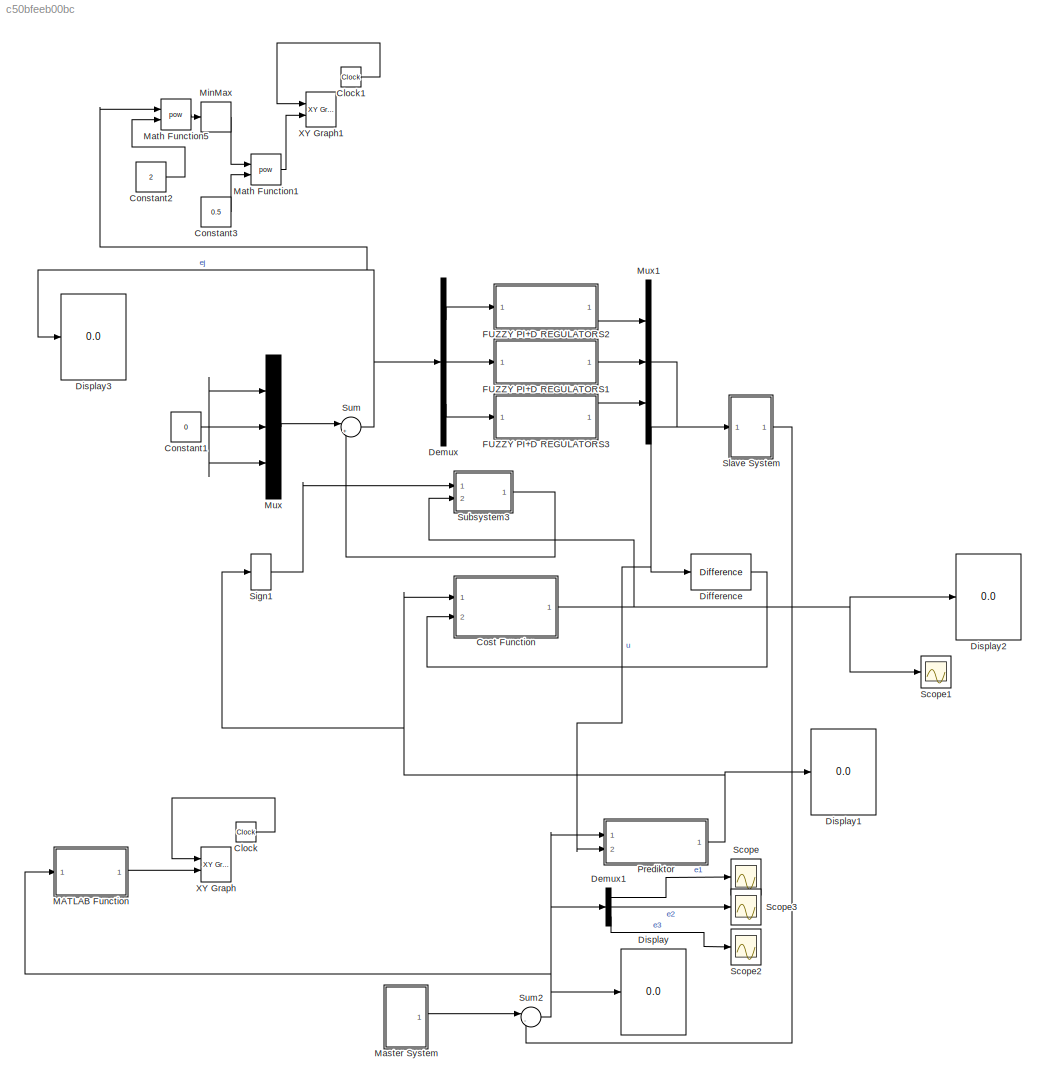
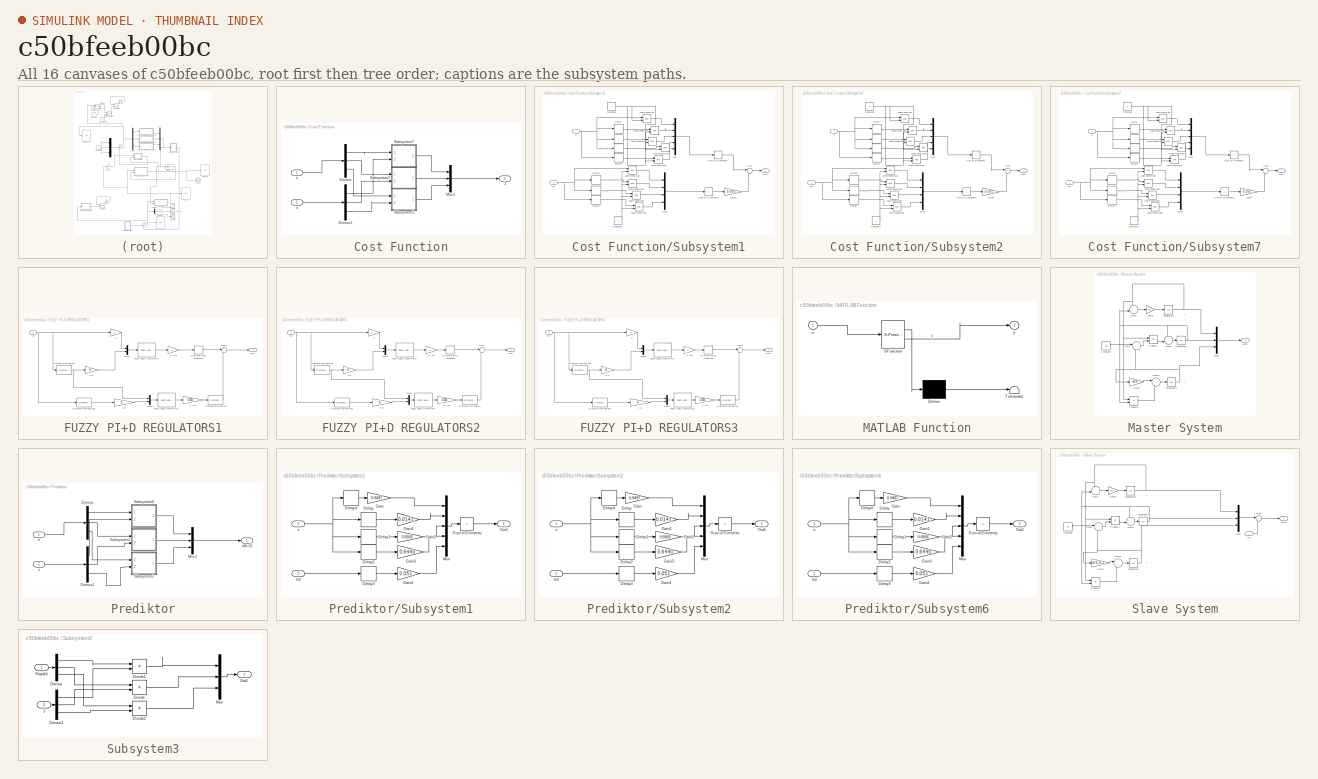
[diagram: thumbnail index - all 16 canvases of the model, root first then tree order]
MODEL slx_c50bfeeb00bc
KIND model
CONFIG AbsTol = auto
CONFIG EnableMultiTasking = off
CONFIG FixedStep = auto
CONFIG MaxStep = auto
CONFIG MinStep = auto
CONFIG RelTol = 1e-3
CONFIG SampleTimeConstraint = Unconstrained
CONFIG SolverName = VariableStepAuto
CONFIG StartTime = 0.0
CONFIG StopTime = 100
BLOCK [Clock] Clock
BLOCK [Clock] Clock1
BLOCK [Constant] Constant1
  Value = 0
BLOCK [Constant] Constant2
  Value = 2
BLOCK [Constant] Constant3
  Value = 0.5
BLOCK [SubSystem] Cost Function
  Ports = [2, 1]
  RequestExecContextInheritance = off
BLOCK [Demux] Cost Function/Demux
  Outputs = 3
  Ports = [1, 3]
BLOCK [Demux] Cost Function/Demux1
  Outputs = 3
  Ports = [1, 3]
BLOCK [Outport] Cost Function/J 
BLOCK [Mux] Cost Function/Mux1
  DisplayOption = bar
  Inputs = 3
  Ports = [3, 1]
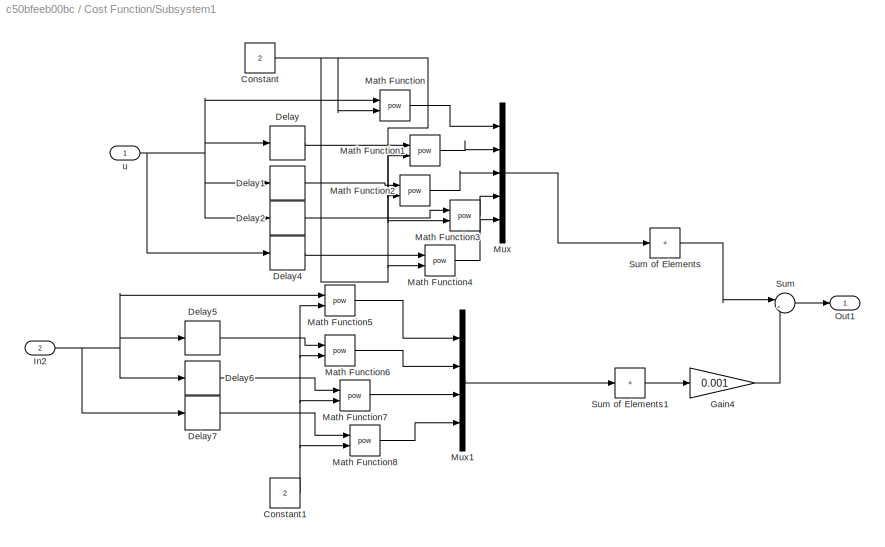
BLOCK [SubSystem] Cost Function/Subsystem1
  Ports = [2, 1]
  RequestExecContextInheritance = off
BLOCK [Constant] Cost Function/Subsystem1/Constant
  Value = 2
BLOCK [Constant] Cost Function/Subsystem1/Constant1
  Value = 2
BLOCK [Delay] Cost Function/Subsystem1/Delay
  DelayLength = 1
  InputPortMap = u0
  Ports = [1, 1]
BLOCK [Delay] Cost Function/Subsystem1/Delay1
  InputPortMap = u0
  Ports = [1, 1]
BLOCK [Delay] Cost Function/Subsystem1/Delay2
  DelayLength = 3
  InputPortMap = u0
  Ports = [1, 1]
BLOCK [Delay] Cost Function/Subsystem1/Delay4
  DelayLength = 4
  InputPortMap = u0
  Ports = [1, 1]
BLOCK [Delay] Cost Function/Subsystem1/Delay5
  DelayLength = 1
  InputPortMap = u0
  Ports = [1, 1]
BLOCK [Delay] Cost Function/Subsystem1/Delay6
  InputPortMap = u0
  Ports = [1, 1]
BLOCK [Delay] Cost Function/Subsystem1/Delay7
  DelayLength = 3
  InputPortMap = u0
  Ports = [1, 1]
BLOCK [Gain] Cost Function/Subsystem1/Gain4
  Gain = 0.001
BLOCK [Inport] Cost Function/Subsystem1/In2
  Port = 2
BLOCK [Math] Cost Function/Subsystem1/Math Function
  Operator = pow
  Ports = [2, 1]
BLOCK [Math] Cost Function/Subsystem1/Math Function1
  Operator = pow
  Ports = [2, 1]
BLOCK [Math] Cost Function/Subsystem1/Math Function2
  Operator = pow
  Ports = [2, 1]
BLOCK [Math] Cost Function/Subsystem1/Math Function3
  Operator = pow
  Ports = [2, 1]
BLOCK [Math] Cost Function/Subsystem1/Math Function4
  Operator = pow
  Ports = [2, 1]
BLOCK [Math] Cost Function/Subsystem1/Math Function5
  Operator = pow
  Ports = [2, 1]
BLOCK [Math] Cost Function/Subsystem1/Math Function6
  Operator = pow
  Ports = [2, 1]
BLOCK [Math] Cost Function/Subsystem1/Math Function7
  Operator = pow
  Ports = [2, 1]
BLOCK [Math] Cost Function/Subsystem1/Math Function8
  Operator = pow
  Ports = [2, 1]
BLOCK [Mux] Cost Function/Subsystem1/Mux
  DisplayOption = bar
  Inputs = 5
  Ports = [5, 1]
BLOCK [Mux] Cost Function/Subsystem1/Mux1
  DisplayOption = bar
  Ports = [4, 1]
BLOCK [Outport] Cost Function/Subsystem1/Out1
BLOCK [Sum] Cost Function/Subsystem1/Sum
  Inputs = |++
  Ports = [2, 1]
BLOCK [Sum] Cost Function/Subsystem1/Sum of Elements
  IconShape = rectangular
  Inputs = +
  Ports = [1, 1]
BLOCK [Sum] Cost Function/Subsystem1/Sum of Elements1
  IconShape = rectangular
  Inputs = +
  Ports = [1, 1]
BLOCK [Inport] Cost Function/Subsystem1/u
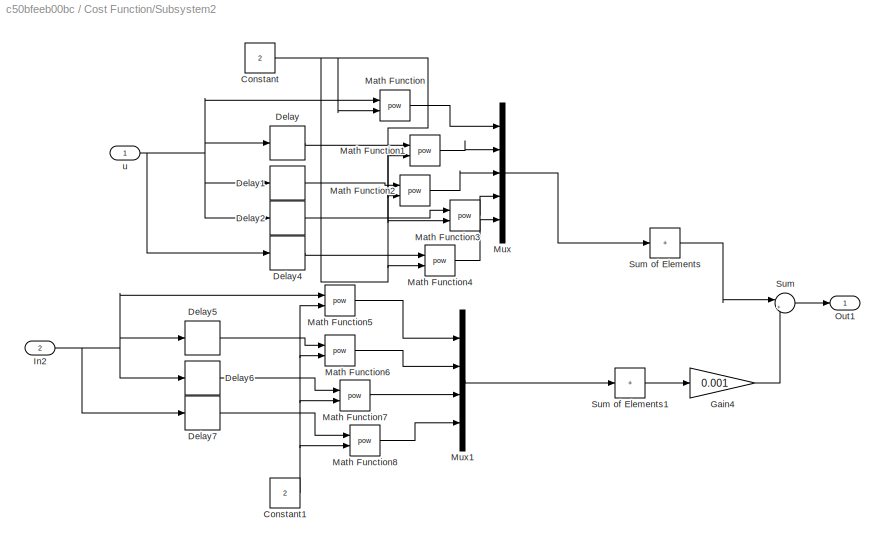
BLOCK [SubSystem] Cost Function/Subsystem2
  Ports = [2, 1]
  RequestExecContextInheritance = off
BLOCK [Constant] Cost Function/Subsystem2/Constant
  Value = 2
BLOCK [Constant] Cost Function/Subsystem2/Constant1
  Value = 2
BLOCK [Delay] Cost Function/Subsystem2/Delay
  DelayLength = 1
  InputPortMap = u0
  Ports = [1, 1]
BLOCK [Delay] Cost Function/Subsystem2/Delay1
  InputPortMap = u0
  Ports = [1, 1]
BLOCK [Delay] Cost Function/Subsystem2/Delay2
  DelayLength = 3
  InputPortMap = u0
  Ports = [1, 1]
BLOCK [Delay] Cost Function/Subsystem2/Delay4
  DelayLength = 4
  InputPortMap = u0
  Ports = [1, 1]
BLOCK [Delay] Cost Function/Subsystem2/Delay5
  DelayLength = 1
  InputPortMap = u0
  Ports = [1, 1]
BLOCK [Delay] Cost Function/Subsystem2/Delay6
  InputPortMap = u0
  Ports = [1, 1]
BLOCK [Delay] Cost Function/Subsystem2/Delay7
  DelayLength = 3
  InputPortMap = u0
  Ports = [1, 1]
BLOCK [Gain] Cost Function/Subsystem2/Gain4
  Gain = 0.001
BLOCK [Inport] Cost Function/Subsystem2/In2
  Port = 2
BLOCK [Math] Cost Function/Subsystem2/Math Function
  Operator = pow
  Ports = [2, 1]
BLOCK [Math] Cost Function/Subsystem2/Math Function1
  Operator = pow
  Ports = [2, 1]
BLOCK [Math] Cost Function/Subsystem2/Math Function2
  Operator = pow
  Ports = [2, 1]
BLOCK [Math] Cost Function/Subsystem2/Math Function3
  Operator = pow
  Ports = [2, 1]
BLOCK [Math] Cost Function/Subsystem2/Math Function4
  Operator = pow
  Ports = [2, 1]
BLOCK [Math] Cost Function/Subsystem2/Math Function5
  Operator = pow
  Ports = [2, 1]
BLOCK [Math] Cost Function/Subsystem2/Math Function6
  Operator = pow
  Ports = [2, 1]
BLOCK [Math] Cost Function/Subsystem2/Math Function7
  Operator = pow
  Ports = [2, 1]
BLOCK [Math] Cost Function/Subsystem2/Math Function8
  Operator = pow
  Ports = [2, 1]
BLOCK [Mux] Cost Function/Subsystem2/Mux
  DisplayOption = bar
  Inputs = 5
  Ports = [5, 1]
BLOCK [Mux] Cost Function/Subsystem2/Mux1
  DisplayOption = bar
  Ports = [4, 1]
BLOCK [Outport] Cost Function/Subsystem2/Out1
BLOCK [Sum] Cost Function/Subsystem2/Sum
  Inputs = |++
  Ports = [2, 1]
BLOCK [Sum] Cost Function/Subsystem2/Sum of Elements
  IconShape = rectangular
  Inputs = +
  Ports = [1, 1]
BLOCK [Sum] Cost Function/Subsystem2/Sum of Elements1
  IconShape = rectangular
  Inputs = +
  Ports = [1, 1]
BLOCK [Inport] Cost Function/Subsystem2/u
BLOCK [SubSystem] Cost Function/Subsystem7
  Ports = [2, 1]
  RequestExecContextInheritance = off
BLOCK [Constant] Cost Function/Subsystem7/Constant
  Value = 2
BLOCK [Constant] Cost Function/Subsystem7/Constant1
  Value = 2
BLOCK [Delay] Cost Function/Subsystem7/Delay
  DelayLength = 1
  InputPortMap = u0
  Ports = [1, 1]
BLOCK [Delay] Cost Function/Subsystem7/Delay1
  InputPortMap = u0
  Ports = [1, 1]
BLOCK [Delay] Cost Function/Subsystem7/Delay2
  DelayLength = 3
  InputPortMap = u0
  Ports = [1, 1]
BLOCK [Delay] Cost Function/Subsystem7/Delay4
  DelayLength = 4
  InputPortMap = u0
  Ports = [1, 1]
BLOCK [Delay] Cost Function/Subsystem7/Delay5
  DelayLength = 1
  InputPortMap = u0
  Ports = [1, 1]
BLOCK [Delay] Cost Function/Subsystem7/Delay6
  InputPortMap = u0
  Ports = [1, 1]
BLOCK [Delay] Cost Function/Subsystem7/Delay7
  DelayLength = 3
  InputPortMap = u0
  Ports = [1, 1]
BLOCK [Gain] Cost Function/Subsystem7/Gain4
  Gain = 0.001
BLOCK [Inport] Cost Function/Subsystem7/In2
  Port = 2
BLOCK [Math] Cost Function/Subsystem7/Math Function
  Operator = pow
  Ports = [2, 1]
BLOCK [Math] Cost Function/Subsystem7/Math Function1
  Operator = pow
  Ports = [2, 1]
BLOCK [Math] Cost Function/Subsystem7/Math Function2
  Operator = pow
  Ports = [2, 1]
BLOCK [Math] Cost Function/Subsystem7/Math Function3
  Operator = pow
  Ports = [2, 1]
BLOCK [Math] Cost Function/Subsystem7/Math Function4
  Operator = pow
  Ports = [2, 1]
BLOCK [Math] Cost Function/Subsystem7/Math Function5
  Operator = pow
  Ports = [2, 1]
BLOCK [Math] Cost Function/Subsystem7/Math Function6
  Operator = pow
  Ports = [2, 1]
BLOCK [Math] Cost Function/Subsystem7/Math Function7
  Operator = pow
  Ports = [2, 1]
BLOCK [Math] Cost Function/Subsystem7/Math Function8
  Operator = pow
  Ports = [2, 1]
BLOCK [Mux] Cost Function/Subsystem7/Mux
  DisplayOption = bar
  Inputs = 5
  Ports = [5, 1]
BLOCK [Mux] Cost Function/Subsystem7/Mux1
  DisplayOption = bar
  Ports = [4, 1]
BLOCK [Outport] Cost Function/Subsystem7/Out1
BLOCK [Sum] Cost Function/Subsystem7/Sum
  Inputs = |++
  Ports = [2, 1]
BLOCK [Sum] Cost Function/Subsystem7/Sum of Elements
  IconShape = rectangular
  Inputs = +
  Ports = [1, 1]
BLOCK [Sum] Cost Function/Subsystem7/Sum of Elements1
  IconShape = rectangular
  Inputs = +
  Ports = [1, 1]
BLOCK [Inport] Cost Function/Subsystem7/u
BLOCK [Inport] Cost Function/e
BLOCK [Inport] Cost Function/u
  Port = 2
BLOCK [Demux] Demux
  Outputs = 3
  Ports = [1, 3]
BLOCK [Demux] Demux1
  Outputs = 3
  Ports = [1, 3]
BLOCK [Reference] Difference  REF=simulink/Discrete/Difference
  Ports = [1, 1]
  SourceBlock = simulink/Discrete/Difference
  SourceProductBaseCode = SL
  SourceType = Difference
BLOCK [Display] Display
  Decimation = 1
  Ports = [1]
BLOCK [Display] Display1
  Decimation = 1
  Ports = [1]
BLOCK [Display] Display2
  Decimation = 1
  Ports = [1]
BLOCK [Display] Display3
  Decimation = 1
  Ports = [1]
BLOCK [SubSystem] FUZZY PI+D REGULATORS1
  Ports = [1, 1]
  RequestExecContextInheritance = off
BLOCK [Reference] FUZZY PI+D REGULATORS1/Discrete Derivative  REF=simulink/Discrete/Discrete Derivative
  Ports = [1, 1]
  SourceBlock = simulink/Discrete/Discrete Derivative
  SourceProductBaseCode = SL
  SourceType = Discrete Derivative
BLOCK [Reference] FUZZY PI+D REGULATORS1/Discrete Derivative1  REF=simulink/Discrete/Discrete Derivative
  Ports = [1, 1]
  SourceBlock = simulink/Discrete/Discrete Derivative
  SourceProductBaseCode = SL
  SourceType = Discrete Derivative
BLOCK [Reference] FUZZY PI+D REGULATORS1/Discrete Derivative2  REF=simulink/Discrete/Discrete Derivative
  Ports = [1, 1]
  SourceBlock = simulink/Discrete/Discrete Derivative
  SourceProductBaseCode = SL
  SourceType = Discrete Derivative
BLOCK [DiscreteIntegrator] FUZZY PI+D REGULATORS1/Discrete-Time Integrator
  ICPrevOutput = DiscIntNeverNeededParam
  ICPrevScaledInput = DiscIntNeverNeededParam
  InitialConditionSetting = Auto
  Ports = [1, 1]
  SampleTime = -1
BLOCK [Reference] FUZZY PI+D REGULATORS1/Fuzzy Logic Controller2  REF=fuzblock/Fuzzy Logic   (lib defined in mdl_858b3b3e7478)
Controller
  Ports = [1, 1]
  SourceBlock = fuzblock/Fuzzy Logic \nController
  SourceProductBaseCode = FL
  SourceType = Fuzzy Inference System
BLOCK [Reference] FUZZY PI+D REGULATORS1/Fuzzy Logic Controller3  REF=fuzblock/Fuzzy Logic   (lib defined in mdl_858b3b3e7478)
Controller
  Ports = [1, 1]
  SourceBlock = fuzblock/Fuzzy Logic \nController
  SourceProductBaseCode = FL
  SourceType = Fuzzy Inference System
BLOCK [Inport] FUZZY PI+D REGULATORS1/In1
BLOCK [Gain] FUZZY PI+D REGULATORS1/K Ud
  Gain = 0.001
BLOCK [Gain] FUZZY PI+D REGULATORS1/K Upi
BLOCK [Gain] FUZZY PI+D REGULATORS1/KD
BLOCK [Gain] FUZZY PI+D REGULATORS1/KI
BLOCK [Gain] FUZZY PI+D REGULATORS1/KP
BLOCK [Mux] FUZZY PI+D REGULATORS1/Mux2
  DisplayOption = bar
  Inputs = 2
  Ports = [2, 1]
BLOCK [Mux] FUZZY PI+D REGULATORS1/Mux3
  DisplayOption = bar
  Inputs = 2
  Ports = [2, 1]
BLOCK [Outport] FUZZY PI+D REGULATORS1/Out1
BLOCK [Sum] FUZZY PI+D REGULATORS1/Sum7
  Inputs = |+-
  Ports = [2, 1]
BLOCK [SubSystem] FUZZY PI+D REGULATORS2
  Ports = [1, 1]
  RequestExecContextInheritance = off
BLOCK [Reference] FUZZY PI+D REGULATORS2/Discrete Derivative  REF=simulink/Discrete/Discrete Derivative
  Ports = [1, 1]
  SourceBlock = simulink/Discrete/Discrete Derivative
  SourceProductBaseCode = SL
  SourceType = Discrete Derivative
BLOCK [Reference] FUZZY PI+D REGULATORS2/Discrete Derivative1  REF=simulink/Discrete/Discrete Derivative
  Ports = [1, 1]
  SourceBlock = simulink/Discrete/Discrete Derivative
  SourceProductBaseCode = SL
  SourceType = Discrete Derivative
BLOCK [Reference] FUZZY PI+D REGULATORS2/Discrete Derivative2  REF=simulink/Discrete/Discrete Derivative
  Ports = [1, 1]
  SourceBlock = simulink/Discrete/Discrete Derivative
  SourceProductBaseCode = SL
  SourceType = Discrete Derivative
BLOCK [DiscreteIntegrator] FUZZY PI+D REGULATORS2/Discrete-Time Integrator
  ICPrevOutput = DiscIntNeverNeededParam
  ICPrevScaledInput = DiscIntNeverNeededParam
  InitialConditionSetting = Auto
  Ports = [1, 1]
  SampleTime = -1
BLOCK [Reference] FUZZY PI+D REGULATORS2/Fuzzy Logic Controller2  REF=fuzblock/Fuzzy Logic   (lib defined in mdl_858b3b3e7478)
Controller
  Ports = [1, 1]
  SourceBlock = fuzblock/Fuzzy Logic \nController
  SourceProductBaseCode = FL
  SourceType = Fuzzy Inference System
BLOCK [Reference] FUZZY PI+D REGULATORS2/Fuzzy Logic Controller3  REF=fuzblock/Fuzzy Logic   (lib defined in mdl_858b3b3e7478)
Controller
  Ports = [1, 1]
  SourceBlock = fuzblock/Fuzzy Logic \nController
  SourceProductBaseCode = FL
  SourceType = Fuzzy Inference System
BLOCK [Inport] FUZZY PI+D REGULATORS2/In1
BLOCK [Gain] FUZZY PI+D REGULATORS2/K Ud
  Gain = 0.001
BLOCK [Gain] FUZZY PI+D REGULATORS2/K Upi
BLOCK [Gain] FUZZY PI+D REGULATORS2/KD
BLOCK [Gain] FUZZY PI+D REGULATORS2/KI
BLOCK [Gain] FUZZY PI+D REGULATORS2/KP
BLOCK [Mux] FUZZY PI+D REGULATORS2/Mux2
  DisplayOption = bar
  Inputs = 2
  Ports = [2, 1]
BLOCK [Mux] FUZZY PI+D REGULATORS2/Mux3
  DisplayOption = bar
  Inputs = 2
  Ports = [2, 1]
BLOCK [Outport] FUZZY PI+D REGULATORS2/Out1
BLOCK [Sum] FUZZY PI+D REGULATORS2/Sum7
  Inputs = |+-
  Ports = [2, 1]
BLOCK [SubSystem] FUZZY PI+D REGULATORS3
  Ports = [1, 1]
  RequestExecContextInheritance = off
BLOCK [Reference] FUZZY PI+D REGULATORS3/Discrete Derivative  REF=simulink/Discrete/Discrete Derivative
  Ports = [1, 1]
  SourceBlock = simulink/Discrete/Discrete Derivative
  SourceProductBaseCode = SL
  SourceType = Discrete Derivative
BLOCK [Reference] FUZZY PI+D REGULATORS3/Discrete Derivative1  REF=simulink/Discrete/Discrete Derivative
  Ports = [1, 1]
  SourceBlock = simulink/Discrete/Discrete Derivative
  SourceProductBaseCode = SL
  SourceType = Discrete Derivative
BLOCK [Reference] FUZZY PI+D REGULATORS3/Discrete Derivative2  REF=simulink/Discrete/Discrete Derivative
  Ports = [1, 1]
  SourceBlock = simulink/Discrete/Discrete Derivative
  SourceProductBaseCode = SL
  SourceType = Discrete Derivative
BLOCK [DiscreteIntegrator] FUZZY PI+D REGULATORS3/Discrete-Time Integrator
  ICPrevOutput = DiscIntNeverNeededParam
  ICPrevScaledInput = DiscIntNeverNeededParam
  InitialConditionSetting = Auto
  Ports = [1, 1]
  SampleTime = -1
BLOCK [Reference] FUZZY PI+D REGULATORS3/Fuzzy Logic Controller2  REF=fuzblock/Fuzzy Logic   (lib defined in mdl_858b3b3e7478)
Controller
  Ports = [1, 1]
  SourceBlock = fuzblock/Fuzzy Logic \nController
  SourceProductBaseCode = FL
  SourceType = Fuzzy Inference System
BLOCK [Reference] FUZZY PI+D REGULATORS3/Fuzzy Logic Controller3  REF=fuzblock/Fuzzy Logic   (lib defined in mdl_858b3b3e7478)
Controller
  Ports = [1, 1]
  SourceBlock = fuzblock/Fuzzy Logic \nController
  SourceProductBaseCode = FL
  SourceType = Fuzzy Inference System
BLOCK [Inport] FUZZY PI+D REGULATORS3/In1
BLOCK [Gain] FUZZY PI+D REGULATORS3/K Ud
  Gain = 0.001
BLOCK [Gain] FUZZY PI+D REGULATORS3/K Upi
BLOCK [Gain] FUZZY PI+D REGULATORS3/KD
BLOCK [Gain] FUZZY PI+D REGULATORS3/KI
BLOCK [Gain] FUZZY PI+D REGULATORS3/KP
BLOCK [Mux] FUZZY PI+D REGULATORS3/Mux2
  DisplayOption = bar
  Inputs = 2
  Ports = [2, 1]
BLOCK [Mux] FUZZY PI+D REGULATORS3/Mux3
  DisplayOption = bar
  Inputs = 2
  Ports = [2, 1]
BLOCK [Outport] FUZZY PI+D REGULATORS3/Out1
BLOCK [Sum] FUZZY PI+D REGULATORS3/Sum7
  Inputs = |+-
  Ports = [2, 1]
BLOCK [SubSystem] MATLAB Function
  ErrorFcn = Stateflow.Translate.translate
  PermitHierarchicalResolution = ExplicitOnly
  Ports = [1, 1]
  RequestExecContextInheritance = off
  SFBlockType = MATLAB Function
  TreatAsAtomicUnit = on
BLOCK [Demux] MATLAB Function/ Demux 
  Outputs = 1
  Ports = [1, 1]
BLOCK [S-Function] MATLAB Function/ SFunction 
  EnableBusSupport = on
  FunctionName = sf_sfun
  PortCounts = [1 2]
  Ports = [1, 2]
  SFcnIsStateOwnerBlock = off
  SFunctionDeploymentMode = off
  Tag = Stateflow S-Function 2
BLOCK [Terminator] MATLAB Function/ Terminator 
BLOCK [Inport] MATLAB Function/u
BLOCK [Outport] MATLAB Function/y
BLOCK [SubSystem] Master System
  Ports = [0, 1]
  RequestExecContextInheritance = off
BLOCK [Constant] Master System/Constant
  Value = 25
BLOCK [Gain] Master System/Gain1
  Gain = 10
BLOCK [Gain] Master System/Gain3
  Gain = 8/3
BLOCK [Integrator] Master System/Integrator2
  IgnoreLimit = on
  InitialCondition = 1
  Ports = [1, 1]
BLOCK [Integrator] Master System/Integrator3
  IgnoreLimit = on
  Ports = [1, 1]
BLOCK [Integrator] Master System/Integrator4
  IgnoreLimit = on
  Ports = [1, 1]
BLOCK [Mux] Master System/Mux1
  DisplayOption = bar
  Inputs = 3
  Ports = [3, 1]
BLOCK [Outport] Master System/Out1
BLOCK [Product] Master System/Product1
  Ports = [2, 1]
BLOCK [Product] Master System/Product2
  InputSameDT = on
  Ports = [2, 1]
BLOCK [Sum] Master System/Sum1
  Inputs = -+|
  Ports = [2, 1]
BLOCK [Sum] Master System/Sum2
  Inputs = -+|
  Ports = [2, 1]
BLOCK [Sum] Master System/Sum3
  Inputs = |-+
  Ports = [2, 1]
BLOCK [Sum] Master System/Sum4
  Inputs = |+-
  Ports = [2, 1]
BLOCK [Math] Math Function1
  Operator = pow
  Ports = [2, 1]
BLOCK [Math] Math Function5
  Operator = pow
  Ports = [2, 1]
BLOCK [MinMax] MinMax
  Function = max
  Ports = [1, 1]
BLOCK [Mux] Mux
  DisplayOption = bar
  Inputs = 3
  Ports = [3, 1]
BLOCK [Mux] Mux1
  DisplayOption = bar
  Inputs = 3
  Ports = [3, 1]
BLOCK [SubSystem] Prediktor
  Ports = [2, 1]
  RequestExecContextInheritance = off
BLOCK [Demux] Prediktor/Demux
  Outputs = 3
  Ports = [1, 3]
BLOCK [Demux] Prediktor/Demux1
  Outputs = 3
  Ports = [1, 3]
BLOCK [Mux] Prediktor/Mux1
  DisplayOption = bar
  Inputs = 3
  Ports = [3, 1]
BLOCK [SubSystem] Prediktor/Subsystem1
  Ports = [2, 1]
  RequestExecContextInheritance = off
BLOCK [Delay] Prediktor/Subsystem1/Delay
  DelayLength = 1
  InputPortMap = u0
  Ports = [1, 1]
BLOCK [Delay] Prediktor/Subsystem1/Delay1
  InputPortMap = u0
  Ports = [1, 1]
BLOCK [Delay] Prediktor/Subsystem1/Delay2
  DelayLength = 3
  InputPortMap = u0
  Ports = [1, 1]
BLOCK [Delay] Prediktor/Subsystem1/Delay3
  DelayLength = 1
  InputPortMap = u0
  Ports = [1, 1]
BLOCK [Delay] Prediktor/Subsystem1/Delay4
  DelayLength = 0
  InitialCondition = 5
  InputPortMap = u0
  Ports = [1, 1]
BLOCK [Gain] Prediktor/Subsystem1/Gain
  Gain = 0.9497
BLOCK [Gain] Prediktor/Subsystem1/Gain1
  Gain = 0.0141
BLOCK [Gain] Prediktor/Subsystem1/Gain2
  Gain = 0.6806
BLOCK [Gain] Prediktor/Subsystem1/Gain3
  Gain = 0.6440
BLOCK [Gain] Prediktor/Subsystem1/Gain4
  Gain = 0.051
BLOCK [Inport] Prediktor/Subsystem1/In2
  Port = 2
BLOCK [Mux] Prediktor/Subsystem1/Mux
  DisplayOption = bar
  Inputs = 5
  Ports = [5, 1]
BLOCK [Outport] Prediktor/Subsystem1/Out1
BLOCK [Sum] Prediktor/Subsystem1/Sum of Elements
  IconShape = rectangular
  Inputs = +
  Ports = [1, 1]
BLOCK [Inport] Prediktor/Subsystem1/u
BLOCK [SubSystem] Prediktor/Subsystem2
  Ports = [2, 1]
  RequestExecContextInheritance = off
BLOCK [Delay] Prediktor/Subsystem2/Delay
  DelayLength = 1
  InputPortMap = u0
  Ports = [1, 1]
BLOCK [Delay] Prediktor/Subsystem2/Delay1
  InputPortMap = u0
  Ports = [1, 1]
BLOCK [Delay] Prediktor/Subsystem2/Delay2
  DelayLength = 3
  InputPortMap = u0
  Ports = [1, 1]
BLOCK [Delay] Prediktor/Subsystem2/Delay3
  DelayLength = 1
  InputPortMap = u0
  Ports = [1, 1]
BLOCK [Delay] Prediktor/Subsystem2/Delay4
  DelayLength = 0
  InitialCondition = -7
  InputPortMap = u0
  Ports = [1, 1]
BLOCK [Gain] Prediktor/Subsystem2/Gain
  Gain = 0.9497
BLOCK [Gain] Prediktor/Subsystem2/Gain1
  Gain = 0.0141
BLOCK [Gain] Prediktor/Subsystem2/Gain2
  Gain = 0.6806
BLOCK [Gain] Prediktor/Subsystem2/Gain3
  Gain = 0.6440
BLOCK [Gain] Prediktor/Subsystem2/Gain4
  Gain = 0.051
BLOCK [Inport] Prediktor/Subsystem2/In2
  Port = 2
BLOCK [Mux] Prediktor/Subsystem2/Mux
  DisplayOption = bar
  Inputs = 5
  Ports = [5, 1]
BLOCK [Outport] Prediktor/Subsystem2/Out1
BLOCK [Sum] Prediktor/Subsystem2/Sum of Elements
  IconShape = rectangular
  Inputs = +
  Ports = [1, 1]
BLOCK [Inport] Prediktor/Subsystem2/u
BLOCK [SubSystem] Prediktor/Subsystem6
  Ports = [2, 1]
  RequestExecContextInheritance = off
BLOCK [Delay] Prediktor/Subsystem6/Delay
  DelayLength = 1
  InputPortMap = u0
  Ports = [1, 1]
BLOCK [Delay] Prediktor/Subsystem6/Delay1
  InputPortMap = u0
  Ports = [1, 1]
BLOCK [Delay] Prediktor/Subsystem6/Delay2
  DelayLength = 3
  InputPortMap = u0
  Ports = [1, 1]
BLOCK [Delay] Prediktor/Subsystem6/Delay3
  DelayLength = 1
  InputPortMap = u0
  Ports = [1, 1]
BLOCK [Delay] Prediktor/Subsystem6/Delay4
  DelayLength = 0
  InputPortMap = u0
  Ports = [1, 1]
BLOCK [Gain] Prediktor/Subsystem6/Gain
  Gain = 0.9497
BLOCK [Gain] Prediktor/Subsystem6/Gain1
  Gain = 0.0141
BLOCK [Gain] Prediktor/Subsystem6/Gain2
  Gain = 0.6806
BLOCK [Gain] Prediktor/Subsystem6/Gain3
  Gain = 0.6440
BLOCK [Gain] Prediktor/Subsystem6/Gain4
  Gain = 0.051
BLOCK [Inport] Prediktor/Subsystem6/In2
  Port = 2
BLOCK [Mux] Prediktor/Subsystem6/Mux
  DisplayOption = bar
  Inputs = 5
  Ports = [5, 1]
BLOCK [Outport] Prediktor/Subsystem6/Out1
BLOCK [Sum] Prediktor/Subsystem6/Sum of Elements
  IconShape = rectangular
  Inputs = +
  Ports = [1, 1]
BLOCK [Inport] Prediktor/Subsystem6/u
BLOCK [Inport] Prediktor/e
BLOCK [Outport] Prediktor/e(k+1)
BLOCK [Inport] Prediktor/u
  Port = 2
BLOCK [Scope] Scope
  Floating = off
  NumInputPorts = 1
  Ports = [1]
  ScopeSpecificationString = Simulink.scopes.TimeScopeBlockCfg('CurrentConfiguration', extmgr.ConfigurationSet(extmgr.Configuration('Core','General UI',true),extmgr.Configuration('Core','Source UI',true),extmgr.Configuration('Sources','WiredSimulink',true,'DataLoggingVariableName','ScopeData1'),extmgr.Configuration('Visuals','Time Domain',true,'SerializedDisplays',{struct('MinYLimReal','-53.83743','MaxYLimReal','22.63658','YL...<+1694ch>
BLOCK [Scope] Scope1
  Floating = off
  NumInputPorts = 1
  Ports = [1]
  ScopeSpecificationString = Simulink.scopes.TimeScopeBlockCfg('CurrentConfiguration', extmgr.ConfigurationSet(extmgr.Configuration('Core','General UI',true),extmgr.Configuration('Core','Source UI',true),extmgr.Configuration('Sources','WiredSimulink',true,'DataLoggingVariableName','ScopeData1'),extmgr.Configuration('Visuals','Time Domain',true,'SerializedDisplays',{struct('MinYLimReal','-1277.11905','MaxYLimReal','11494.08142...<+1849ch>
BLOCK [Scope] Scope2
  Floating = off
  NumInputPorts = 1
  Ports = [1]
  ScopeSpecificationString = Simulink.scopes.TimeScopeBlockCfg('CurrentConfiguration', extmgr.ConfigurationSet(extmgr.Configuration('Core','General UI',true),extmgr.Configuration('Core','Source UI',true),extmgr.Configuration('Sources','WiredSimulink',true,'DataLoggingVariableName','ScopeData2'),extmgr.Configuration('Visuals','Time Domain',true,'SerializedDisplays',{struct('MinYLimReal','-34.06602','MaxYLimReal','46.12275','YL...<+1694ch>
BLOCK [Scope] Scope3
  Floating = off
  NumInputPorts = 1
  Ports = [1]
  ScopeSpecificationString = Simulink.scopes.TimeScopeBlockCfg('CurrentConfiguration', extmgr.ConfigurationSet(extmgr.Configuration('Core','General UI',true),extmgr.Configuration('Core','Source UI',true),extmgr.Configuration('Sources','WiredSimulink',true,'DataLoggingVariableName','ScopeData3'),extmgr.Configuration('Visuals','Time Domain',true,'SerializedDisplays',{struct('MinYLimReal','-45.89512','MaxYLimReal','45.74242','YL...<+1694ch>
BLOCK [Signum] Sign1
  ZeroCross = off
BLOCK [SubSystem] Slave System
  Ports = [1, 1]
  RequestExecContextInheritance = off
BLOCK [Constant] Slave System/Constant
  Value = 30
BLOCK [Gain] Slave System/Gain1
  Gain = 10.5
BLOCK [Gain] Slave System/Gain3
  Gain = 8/3+0.2
BLOCK [Inport] Slave System/In1
BLOCK [Integrator] Slave System/Integrator2
  IgnoreLimit = on
  InitialCondition = 1
  Ports = [1, 1]
BLOCK [Integrator] Slave System/Integrator3
  IgnoreLimit = on
  Ports = [1, 1]
BLOCK [Integrator] Slave System/Integrator4
  IgnoreLimit = on
  Ports = [1, 1]
BLOCK [Mux] Slave System/Mux1
  DisplayOption = bar
  Inputs = 3
  Ports = [3, 1]
BLOCK [Outport] Slave System/Out3
BLOCK [Product] Slave System/Product1
  Ports = [2, 1]
BLOCK [Product] Slave System/Product2
  InputSameDT = on
  Ports = [2, 1]
BLOCK [Sum] Slave System/Sum
  Inputs = |++
  Ports = [2, 1]
BLOCK [Sum] Slave System/Sum1
  Inputs = -+|
  Ports = [2, 1]
BLOCK [Sum] Slave System/Sum2
  Inputs = -+|
  Ports = [2, 1]
BLOCK [Sum] Slave System/Sum3
  Inputs = |-+
  Ports = [2, 1]
BLOCK [Sum] Slave System/Sum4
  Inputs = |+-
  Ports = [2, 1]
BLOCK [SubSystem] Subsystem3
  Ports = [2, 1]
  RequestExecContextInheritance = off
BLOCK [Demux] Subsystem3/Demux
  Outputs = 3
  Ports = [1, 3]
BLOCK [Demux] Subsystem3/Demux1
  Outputs = 3
  Ports = [1, 3]
BLOCK [Product] Subsystem3/Divide
  Inputs = **
  Ports = [2, 1]
BLOCK [Product] Subsystem3/Divide1
  Inputs = **
  Ports = [2, 1]
BLOCK [Product] Subsystem3/Divide2
  Inputs = **
  Ports = [2, 1]
BLOCK [Inport] Subsystem3/J
  Port = 2
BLOCK [Mux] Subsystem3/Mux
  DisplayOption = bar
  Inputs = 3
  Ports = [3, 1]
BLOCK [Outport] Subsystem3/Out1
BLOCK [Inport] Subsystem3/Sign(e)
BLOCK [Sum] Sum
  Inputs = |+-
  Ports = [2, 1]
BLOCK [Sum] Sum2
  Inputs = |-+
  Ports = [2, 1]
BLOCK [Reference] XY Graph  REF=simulink/Sinks/XY Graph
  Ports = [2]
  SourceBlock = simulink/Sinks/XY Graph
  SourceProductBaseCode = SL
  SourceType = XY scope.
BLOCK [Reference] XY Graph1  REF=simulink/Sinks/XY Graph
  Ports = [2]
  SourceBlock = simulink/Sinks/XY Graph
  SourceProductBaseCode = SL
  SourceType = XY scope.
ANNOTATION Master System: r
ANNOTATION Master System: x
ANNOTATION Master System: y
ANNOTATION Master System: z
ANNOTATION Slave System: r
ANNOTATION Slave System: x
ANNOTATION Slave System: y
ANNOTATION Slave System: z
LINE Clock1:1 -> XY Graph1:1
LINE Clock:1 -> XY Graph:1
NET Constant1:1 -> Mux:1, Mux:2, Mux:3
LINE Constant2:1 -> Math Function5:2
LINE Constant3:1 -> Math Function1:2
LINE Cost Function/Demux1:1 -> Cost Function/Subsystem7:2
LINE Cost Function/Demux1:2 -> Cost Function/Subsystem1:2
LINE Cost Function/Demux1:3 -> Cost Function/Subsystem2:2
LINE Cost Function/Demux:1 -> Cost Function/Subsystem7:1
LINE Cost Function/Demux:2 -> Cost Function/Subsystem1:1
LINE Cost Function/Demux:3 -> Cost Function/Subsystem2:1
LINE Cost Function/Mux1:1 -> Cost Function/J :1
NET Cost Function/Subsystem1/Constant1:1 -> Cost Function/Subsystem1/Math Function5:2, Cost Function/Subsystem1/Math Function6:2, Cost Function/Subsystem1/Math Function7:2, Cost Function/Subsystem1/Math Function8:2
NET Cost Function/Subsystem1/Constant:1 -> Cost Function/Subsystem1/Math Function1:2, Cost Function/Subsystem1/Math Function2:2, Cost Function/Subsystem1/Math Function3:2, Cost Function/Subsystem1/Math Function4:2, Cost Function/Subsystem1/Math Function:2
LINE Cost Function/Subsystem1/Delay1:1 -> Cost Function/Subsystem1/Math Function2:1
LINE Cost Function/Subsystem1/Delay2:1 -> Cost Function/Subsystem1/Math Function3:1
LINE Cost Function/Subsystem1/Delay4:1 -> Cost Function/Subsystem1/Math Function4:1
LINE Cost Function/Subsystem1/Delay5:1 -> Cost Function/Subsystem1/Math Function6:1
LINE Cost Function/Subsystem1/Delay6:1 -> Cost Function/Subsystem1/Math Function7:1
LINE Cost Function/Subsystem1/Delay7:1 -> Cost Function/Subsystem1/Math Function8:1
LINE Cost Function/Subsystem1/Delay:1 -> Cost Function/Subsystem1/Math Function1:1
LINE Cost Function/Subsystem1/Gain4:1 -> Cost Function/Subsystem1/Sum:2
NET Cost Function/Subsystem1/In2:1 -> Cost Function/Subsystem1/Delay5:1, Cost Function/Subsystem1/Delay6:1, Cost Function/Subsystem1/Delay7:1, Cost Function/Subsystem1/Math Function5:1
LINE Cost Function/Subsystem1/Math Function1:1 -> Cost Function/Subsystem1/Mux:2
LINE Cost Function/Subsystem1/Math Function2:1 -> Cost Function/Subsystem1/Mux:3
LINE Cost Function/Subsystem1/Math Function3:1 -> Cost Function/Subsystem1/Mux:4
LINE Cost Function/Subsystem1/Math Function4:1 -> Cost Function/Subsystem1/Mux:5
LINE Cost Function/Subsystem1/Math Function5:1 -> Cost Function/Subsystem1/Mux1:1
LINE Cost Function/Subsystem1/Math Function6:1 -> Cost Function/Subsystem1/Mux1:2
LINE Cost Function/Subsystem1/Math Function7:1 -> Cost Function/Subsystem1/Mux1:3
LINE Cost Function/Subsystem1/Math Function8:1 -> Cost Function/Subsystem1/Mux1:4
LINE Cost Function/Subsystem1/Math Function:1 -> Cost Function/Subsystem1/Mux:1
LINE Cost Function/Subsystem1/Mux1:1 -> Cost Function/Subsystem1/Sum of Elements1:1
LINE Cost Function/Subsystem1/Mux:1 -> Cost Function/Subsystem1/Sum of Elements:1
LINE Cost Function/Subsystem1/Sum of Elements1:1 -> Cost Function/Subsystem1/Gain4:1
LINE Cost Function/Subsystem1/Sum of Elements:1 -> Cost Function/Subsystem1/Sum:1
LINE Cost Function/Subsystem1/Sum:1 -> Cost Function/Subsystem1/Out1:1
NET Cost Function/Subsystem1/u:1 -> Cost Function/Subsystem1/Delay1:1, Cost Function/Subsystem1/Delay2:1, Cost Function/Subsystem1/Delay4:1, Cost Function/Subsystem1/Delay:1, Cost Function/Subsystem1/Math Function:1
LINE Cost Function/Subsystem1:1 -> Cost Function/Mux1:2
NET Cost Function/Subsystem2/Constant1:1 -> Cost Function/Subsystem2/Math Function5:2, Cost Function/Subsystem2/Math Function6:2, Cost Function/Subsystem2/Math Function7:2, Cost Function/Subsystem2/Math Function8:2
NET Cost Function/Subsystem2/Constant:1 -> Cost Function/Subsystem2/Math Function1:2, Cost Function/Subsystem2/Math Function2:2, Cost Function/Subsystem2/Math Function3:2, Cost Function/Subsystem2/Math Function4:2, Cost Function/Subsystem2/Math Function:2
LINE Cost Function/Subsystem2/Delay1:1 -> Cost Function/Subsystem2/Math Function2:1
LINE Cost Function/Subsystem2/Delay2:1 -> Cost Function/Subsystem2/Math Function3:1
LINE Cost Function/Subsystem2/Delay4:1 -> Cost Function/Subsystem2/Math Function4:1
LINE Cost Function/Subsystem2/Delay5:1 -> Cost Function/Subsystem2/Math Function6:1
LINE Cost Function/Subsystem2/Delay6:1 -> Cost Function/Subsystem2/Math Function7:1
LINE Cost Function/Subsystem2/Delay7:1 -> Cost Function/Subsystem2/Math Function8:1
LINE Cost Function/Subsystem2/Delay:1 -> Cost Function/Subsystem2/Math Function1:1
LINE Cost Function/Subsystem2/Gain4:1 -> Cost Function/Subsystem2/Sum:2
NET Cost Function/Subsystem2/In2:1 -> Cost Function/Subsystem2/Delay5:1, Cost Function/Subsystem2/Delay6:1, Cost Function/Subsystem2/Delay7:1, Cost Function/Subsystem2/Math Function5:1
LINE Cost Function/Subsystem2/Math Function1:1 -> Cost Function/Subsystem2/Mux:2
LINE Cost Function/Subsystem2/Math Function2:1 -> Cost Function/Subsystem2/Mux:3
LINE Cost Function/Subsystem2/Math Function3:1 -> Cost Function/Subsystem2/Mux:4
LINE Cost Function/Subsystem2/Math Function4:1 -> Cost Function/Subsystem2/Mux:5
LINE Cost Function/Subsystem2/Math Function5:1 -> Cost Function/Subsystem2/Mux1:1
LINE Cost Function/Subsystem2/Math Function6:1 -> Cost Function/Subsystem2/Mux1:2
LINE Cost Function/Subsystem2/Math Function7:1 -> Cost Function/Subsystem2/Mux1:3
LINE Cost Function/Subsystem2/Math Function8:1 -> Cost Function/Subsystem2/Mux1:4
LINE Cost Function/Subsystem2/Math Function:1 -> Cost Function/Subsystem2/Mux:1
LINE Cost Function/Subsystem2/Mux1:1 -> Cost Function/Subsystem2/Sum of Elements1:1
LINE Cost Function/Subsystem2/Mux:1 -> Cost Function/Subsystem2/Sum of Elements:1
LINE Cost Function/Subsystem2/Sum of Elements1:1 -> Cost Function/Subsystem2/Gain4:1
LINE Cost Function/Subsystem2/Sum of Elements:1 -> Cost Function/Subsystem2/Sum:1
LINE Cost Function/Subsystem2/Sum:1 -> Cost Function/Subsystem2/Out1:1
NET Cost Function/Subsystem2/u:1 -> Cost Function/Subsystem2/Delay1:1, Cost Function/Subsystem2/Delay2:1, Cost Function/Subsystem2/Delay4:1, Cost Function/Subsystem2/Delay:1, Cost Function/Subsystem2/Math Function:1
LINE Cost Function/Subsystem2:1 -> Cost Function/Mux1:3
NET Cost Function/Subsystem7/Constant1:1 -> Cost Function/Subsystem7/Math Function5:2, Cost Function/Subsystem7/Math Function6:2, Cost Function/Subsystem7/Math Function7:2, Cost Function/Subsystem7/Math Function8:2
NET Cost Function/Subsystem7/Constant:1 -> Cost Function/Subsystem7/Math Function1:2, Cost Function/Subsystem7/Math Function2:2, Cost Function/Subsystem7/Math Function3:2, Cost Function/Subsystem7/Math Function4:2, Cost Function/Subsystem7/Math Function:2
LINE Cost Function/Subsystem7/Delay1:1 -> Cost Function/Subsystem7/Math Function2:1
LINE Cost Function/Subsystem7/Delay2:1 -> Cost Function/Subsystem7/Math Function3:1
LINE Cost Function/Subsystem7/Delay4:1 -> Cost Function/Subsystem7/Math Function4:1
LINE Cost Function/Subsystem7/Delay5:1 -> Cost Function/Subsystem7/Math Function6:1
LINE Cost Function/Subsystem7/Delay6:1 -> Cost Function/Subsystem7/Math Function7:1
LINE Cost Function/Subsystem7/Delay7:1 -> Cost Function/Subsystem7/Math Function8:1
LINE Cost Function/Subsystem7/Delay:1 -> Cost Function/Subsystem7/Math Function1:1
LINE Cost Function/Subsystem7/Gain4:1 -> Cost Function/Subsystem7/Sum:2
NET Cost Function/Subsystem7/In2:1 -> Cost Function/Subsystem7/Delay5:1, Cost Function/Subsystem7/Delay6:1, Cost Function/Subsystem7/Delay7:1, Cost Function/Subsystem7/Math Function5:1
LINE Cost Function/Subsystem7/Math Function1:1 -> Cost Function/Subsystem7/Mux:2
LINE Cost Function/Subsystem7/Math Function2:1 -> Cost Function/Subsystem7/Mux:3
LINE Cost Function/Subsystem7/Math Function3:1 -> Cost Function/Subsystem7/Mux:4
LINE Cost Function/Subsystem7/Math Function4:1 -> Cost Function/Subsystem7/Mux:5
LINE Cost Function/Subsystem7/Math Function5:1 -> Cost Function/Subsystem7/Mux1:1
LINE Cost Function/Subsystem7/Math Function6:1 -> Cost Function/Subsystem7/Mux1:2
LINE Cost Function/Subsystem7/Math Function7:1 -> Cost Function/Subsystem7/Mux1:3
LINE Cost Function/Subsystem7/Math Function8:1 -> Cost Function/Subsystem7/Mux1:4
LINE Cost Function/Subsystem7/Math Function:1 -> Cost Function/Subsystem7/Mux:1
LINE Cost Function/Subsystem7/Mux1:1 -> Cost Function/Subsystem7/Sum of Elements1:1
LINE Cost Function/Subsystem7/Mux:1 -> Cost Function/Subsystem7/Sum of Elements:1
LINE Cost Function/Subsystem7/Sum of Elements1:1 -> Cost Function/Subsystem7/Gain4:1
LINE Cost Function/Subsystem7/Sum of Elements:1 -> Cost Function/Subsystem7/Sum:1
LINE Cost Function/Subsystem7/Sum:1 -> Cost Function/Subsystem7/Out1:1
NET Cost Function/Subsystem7/u:1 -> Cost Function/Subsystem7/Delay1:1, Cost Function/Subsystem7/Delay2:1, Cost Function/Subsystem7/Delay4:1, Cost Function/Subsystem7/Delay:1, Cost Function/Subsystem7/Math Function:1
LINE Cost Function/Subsystem7:1 -> Cost Function/Mux1:1
LINE Cost Function/e:1 -> Cost Function/Demux:1
LINE Cost Function/u:1 -> Cost Function/Demux1:1
NET Cost Function:1 -> Display2:1, Scope1:1, Subsystem3:2
LINE Demux1:1 -> Scope:1
LINE Demux1:2 -> Scope3:1
LINE Demux1:3 -> Scope2:1
LINE Demux:1 -> FUZZY PI+D REGULATORS2:1
LINE Demux:2 -> FUZZY PI+D REGULATORS1:1
LINE Demux:3 -> FUZZY PI+D REGULATORS3:1
LINE Difference:1 -> Cost Function:2
NET FUZZY PI+D REGULATORS1/Discrete Derivative1:1 -> FUZZY PI+D REGULATORS1/KP:1, FUZZY PI+D REGULATORS1/Mux3:1
LINE FUZZY PI+D REGULATORS1/Discrete Derivative2:1 -> FUZZY PI+D REGULATORS1/KD:1
LINE FUZZY PI+D REGULATORS1/Discrete Derivative:1 -> FUZZY PI+D REGULATORS1/Sum7:2
LINE FUZZY PI+D REGULATORS1/Discrete-Time Integrator:1 -> FUZZY PI+D REGULATORS1/Sum7:1
LINE FUZZY PI+D REGULATORS1/Fuzzy Logic Controller2:1 -> FUZZY PI+D REGULATORS1/K Upi:1
LINE FUZZY PI+D REGULATORS1/Fuzzy Logic Controller3:1 -> FUZZY PI+D REGULATORS1/K Ud:1
NET FUZZY PI+D REGULATORS1/In1:1 -> FUZZY PI+D REGULATORS1/Discrete Derivative1:1, FUZZY PI+D REGULATORS1/Discrete Derivative2:1, FUZZY PI+D REGULATORS1/KI:1
LINE FUZZY PI+D REGULATORS1/K Ud:1 -> FUZZY PI+D REGULATORS1/Discrete Derivative:1
LINE FUZZY PI+D REGULATORS1/K Upi:1 -> FUZZY PI+D REGULATORS1/Discrete-Time Integrator:1
LINE FUZZY PI+D REGULATORS1/KD:1 -> FUZZY PI+D REGULATORS1/Mux3:2
LINE FUZZY PI+D REGULATORS1/KI:1 -> FUZZY PI+D REGULATORS1/Mux2:1
LINE FUZZY PI+D REGULATORS1/KP:1 -> FUZZY PI+D REGULATORS1/Mux2:2
LINE FUZZY PI+D REGULATORS1/Mux2:1 -> FUZZY PI+D REGULATORS1/Fuzzy Logic Controller2:1
LINE FUZZY PI+D REGULATORS1/Mux3:1 -> FUZZY PI+D REGULATORS1/Fuzzy Logic Controller3:1
LINE FUZZY PI+D REGULATORS1/Sum7:1 -> FUZZY PI+D REGULATORS1/Out1:1
LINE FUZZY PI+D REGULATORS1:1 -> Mux1:2
NET FUZZY PI+D REGULATORS2/Discrete Derivative1:1 -> FUZZY PI+D REGULATORS2/KP:1, FUZZY PI+D REGULATORS2/Mux3:1
LINE FUZZY PI+D REGULATORS2/Discrete Derivative2:1 -> FUZZY PI+D REGULATORS2/KD:1
LINE FUZZY PI+D REGULATORS2/Discrete Derivative:1 -> FUZZY PI+D REGULATORS2/Sum7:2
LINE FUZZY PI+D REGULATORS2/Discrete-Time Integrator:1 -> FUZZY PI+D REGULATORS2/Sum7:1
LINE FUZZY PI+D REGULATORS2/Fuzzy Logic Controller2:1 -> FUZZY PI+D REGULATORS2/K Upi:1
LINE FUZZY PI+D REGULATORS2/Fuzzy Logic Controller3:1 -> FUZZY PI+D REGULATORS2/K Ud:1
NET FUZZY PI+D REGULATORS2/In1:1 -> FUZZY PI+D REGULATORS2/Discrete Derivative1:1, FUZZY PI+D REGULATORS2/Discrete Derivative2:1, FUZZY PI+D REGULATORS2/KI:1
LINE FUZZY PI+D REGULATORS2/K Ud:1 -> FUZZY PI+D REGULATORS2/Discrete Derivative:1
LINE FUZZY PI+D REGULATORS2/K Upi:1 -> FUZZY PI+D REGULATORS2/Discrete-Time Integrator:1
LINE FUZZY PI+D REGULATORS2/KD:1 -> FUZZY PI+D REGULATORS2/Mux3:2
LINE FUZZY PI+D REGULATORS2/KI:1 -> FUZZY PI+D REGULATORS2/Mux2:1
LINE FUZZY PI+D REGULATORS2/KP:1 -> FUZZY PI+D REGULATORS2/Mux2:2
LINE FUZZY PI+D REGULATORS2/Mux2:1 -> FUZZY PI+D REGULATORS2/Fuzzy Logic Controller2:1
LINE FUZZY PI+D REGULATORS2/Mux3:1 -> FUZZY PI+D REGULATORS2/Fuzzy Logic Controller3:1
LINE FUZZY PI+D REGULATORS2/Sum7:1 -> FUZZY PI+D REGULATORS2/Out1:1
LINE FUZZY PI+D REGULATORS2:1 -> Mux1:1
NET FUZZY PI+D REGULATORS3/Discrete Derivative1:1 -> FUZZY PI+D REGULATORS3/KP:1, FUZZY PI+D REGULATORS3/Mux3:1
LINE FUZZY PI+D REGULATORS3/Discrete Derivative2:1 -> FUZZY PI+D REGULATORS3/KD:1
LINE FUZZY PI+D REGULATORS3/Discrete Derivative:1 -> FUZZY PI+D REGULATORS3/Sum7:2
LINE FUZZY PI+D REGULATORS3/Discrete-Time Integrator:1 -> FUZZY PI+D REGULATORS3/Sum7:1
LINE FUZZY PI+D REGULATORS3/Fuzzy Logic Controller2:1 -> FUZZY PI+D REGULATORS3/K Upi:1
LINE FUZZY PI+D REGULATORS3/Fuzzy Logic Controller3:1 -> FUZZY PI+D REGULATORS3/K Ud:1
NET FUZZY PI+D REGULATORS3/In1:1 -> FUZZY PI+D REGULATORS3/Discrete Derivative1:1, FUZZY PI+D REGULATORS3/Discrete Derivative2:1, FUZZY PI+D REGULATORS3/KI:1
LINE FUZZY PI+D REGULATORS3/K Ud:1 -> FUZZY PI+D REGULATORS3/Discrete Derivative:1
LINE FUZZY PI+D REGULATORS3/K Upi:1 -> FUZZY PI+D REGULATORS3/Discrete-Time Integrator:1
LINE FUZZY PI+D REGULATORS3/KD:1 -> FUZZY PI+D REGULATORS3/Mux3:2
LINE FUZZY PI+D REGULATORS3/KI:1 -> FUZZY PI+D REGULATORS3/Mux2:1
LINE FUZZY PI+D REGULATORS3/KP:1 -> FUZZY PI+D REGULATORS3/Mux2:2
LINE FUZZY PI+D REGULATORS3/Mux2:1 -> FUZZY PI+D REGULATORS3/Fuzzy Logic Controller2:1
LINE FUZZY PI+D REGULATORS3/Mux3:1 -> FUZZY PI+D REGULATORS3/Fuzzy Logic Controller3:1
LINE FUZZY PI+D REGULATORS3/Sum7:1 -> FUZZY PI+D REGULATORS3/Out1:1
LINE FUZZY PI+D REGULATORS3:1 -> Mux1:3
LINE MATLAB Function:1 -> XY Graph:2
LINE Master System/Constant:1 -> Master System/Sum4:1
LINE Master System/Gain1:1 -> Master System/Integrator2:1
LINE Master System/Gain3:1 -> Master System/Sum3:1
NET Master System/Integrator2:1 -> Master System/Mux1:1, Master System/Product1:1, Master System/Product2:1, Master System/Sum1:1
NET Master System/Integrator3:1 -> Master System/Mux1:2, Master System/Product2:2, Master System/Sum1:2, Master System/Sum2:1
NET Master System/Integrator4:1 -> Master System/Gain3:1, Master System/Mux1:3, Master System/Sum4:2
LINE Master System/Mux1:1 -> Master System/Out1:1
LINE Master System/Product1:1 -> Master System/Sum2:2
LINE Master System/Product2:1 -> Master System/Sum3:2
LINE Master System/Sum1:1 -> Master System/Gain1:1
LINE Master System/Sum2:1 -> Master System/Integrator3:1
LINE Master System/Sum3:1 -> Master System/Integrator4:1
LINE Master System/Sum4:1 -> Master System/Product1:2
LINE Master System:1 -> Sum2:1
LINE Math Function1:1 -> XY Graph1:2
LINE Math Function5:1 -> MinMax:1
LINE MinMax:1 -> Math Function1:1
NET Mux1:1 -> Difference:1, Prediktor:2, Slave System:1
LINE Mux:1 -> Sum:1
LINE Prediktor/Demux1:1 -> Prediktor/Subsystem6:2
LINE Prediktor/Demux1:2 -> Prediktor/Subsystem1:2
LINE Prediktor/Demux1:3 -> Prediktor/Subsystem2:2
LINE Prediktor/Demux:1 -> Prediktor/Subsystem6:1
LINE Prediktor/Demux:2 -> Prediktor/Subsystem1:1
LINE Prediktor/Demux:3 -> Prediktor/Subsystem2:1
LINE Prediktor/Mux1:1 -> Prediktor/e(k+1):1
LINE Prediktor/Subsystem1/Delay1:1 -> Prediktor/Subsystem1/Gain2:1
LINE Prediktor/Subsystem1/Delay2:1 -> Prediktor/Subsystem1/Gain3:1
LINE Prediktor/Subsystem1/Delay3:1 -> Prediktor/Subsystem1/Gain4:1
LINE Prediktor/Subsystem1/Delay4:1 -> Prediktor/Subsystem1/Gain:1
LINE Prediktor/Subsystem1/Delay:1 -> Prediktor/Subsystem1/Gain1:1
LINE Prediktor/Subsystem1/Gain1:1 -> Prediktor/Subsystem1/Mux:2
LINE Prediktor/Subsystem1/Gain2:1 -> Prediktor/Subsystem1/Mux:3
LINE Prediktor/Subsystem1/Gain3:1 -> Prediktor/Subsystem1/Mux:4
LINE Prediktor/Subsystem1/Gain4:1 -> Prediktor/Subsystem1/Mux:5
LINE Prediktor/Subsystem1/Gain:1 -> Prediktor/Subsystem1/Mux:1
LINE Prediktor/Subsystem1/In2:1 -> Prediktor/Subsystem1/Delay3:1
LINE Prediktor/Subsystem1/Mux:1 -> Prediktor/Subsystem1/Sum of Elements:1
LINE Prediktor/Subsystem1/Sum of Elements:1 -> Prediktor/Subsystem1/Out1:1
NET Prediktor/Subsystem1/u:1 -> Prediktor/Subsystem1/Delay1:1, Prediktor/Subsystem1/Delay2:1, Prediktor/Subsystem1/Delay4:1, Prediktor/Subsystem1/Delay:1
LINE Prediktor/Subsystem1:1 -> Prediktor/Mux1:2
LINE Prediktor/Subsystem2/Delay1:1 -> Prediktor/Subsystem2/Gain2:1
LINE Prediktor/Subsystem2/Delay2:1 -> Prediktor/Subsystem2/Gain3:1
LINE Prediktor/Subsystem2/Delay3:1 -> Prediktor/Subsystem2/Gain4:1
LINE Prediktor/Subsystem2/Delay4:1 -> Prediktor/Subsystem2/Gain:1
LINE Prediktor/Subsystem2/Delay:1 -> Prediktor/Subsystem2/Gain1:1
LINE Prediktor/Subsystem2/Gain1:1 -> Prediktor/Subsystem2/Mux:2
LINE Prediktor/Subsystem2/Gain2:1 -> Prediktor/Subsystem2/Mux:3
LINE Prediktor/Subsystem2/Gain3:1 -> Prediktor/Subsystem2/Mux:4
LINE Prediktor/Subsystem2/Gain4:1 -> Prediktor/Subsystem2/Mux:5
LINE Prediktor/Subsystem2/Gain:1 -> Prediktor/Subsystem2/Mux:1
LINE Prediktor/Subsystem2/In2:1 -> Prediktor/Subsystem2/Delay3:1
LINE Prediktor/Subsystem2/Mux:1 -> Prediktor/Subsystem2/Sum of Elements:1
LINE Prediktor/Subsystem2/Sum of Elements:1 -> Prediktor/Subsystem2/Out1:1
NET Prediktor/Subsystem2/u:1 -> Prediktor/Subsystem2/Delay1:1, Prediktor/Subsystem2/Delay2:1, Prediktor/Subsystem2/Delay4:1, Prediktor/Subsystem2/Delay:1
LINE Prediktor/Subsystem2:1 -> Prediktor/Mux1:3
LINE Prediktor/Subsystem6/Delay1:1 -> Prediktor/Subsystem6/Gain2:1
LINE Prediktor/Subsystem6/Delay2:1 -> Prediktor/Subsystem6/Gain3:1
LINE Prediktor/Subsystem6/Delay3:1 -> Prediktor/Subsystem6/Gain4:1
LINE Prediktor/Subsystem6/Delay4:1 -> Prediktor/Subsystem6/Gain:1
LINE Prediktor/Subsystem6/Delay:1 -> Prediktor/Subsystem6/Gain1:1
LINE Prediktor/Subsystem6/Gain1:1 -> Prediktor/Subsystem6/Mux:2
LINE Prediktor/Subsystem6/Gain2:1 -> Prediktor/Subsystem6/Mux:3
LINE Prediktor/Subsystem6/Gain3:1 -> Prediktor/Subsystem6/Mux:4
LINE Prediktor/Subsystem6/Gain4:1 -> Prediktor/Subsystem6/Mux:5
LINE Prediktor/Subsystem6/Gain:1 -> Prediktor/Subsystem6/Mux:1
LINE Prediktor/Subsystem6/In2:1 -> Prediktor/Subsystem6/Delay3:1
LINE Prediktor/Subsystem6/Mux:1 -> Prediktor/Subsystem6/Sum of Elements:1
LINE Prediktor/Subsystem6/Sum of Elements:1 -> Prediktor/Subsystem6/Out1:1
NET Prediktor/Subsystem6/u:1 -> Prediktor/Subsystem6/Delay1:1, Prediktor/Subsystem6/Delay2:1, Prediktor/Subsystem6/Delay4:1, Prediktor/Subsystem6/Delay:1
LINE Prediktor/Subsystem6:1 -> Prediktor/Mux1:1
LINE Prediktor/e:1 -> Prediktor/Demux:1
LINE Prediktor/u:1 -> Prediktor/Demux1:1
NET Prediktor:1 -> Cost Function:1, Display1:1, Sign1:1
LINE Sign1:1 -> Subsystem3:1
LINE Slave System/Constant:1 -> Slave System/Sum4:1
LINE Slave System/Gain1:1 -> Slave System/Integrator2:1
LINE Slave System/Gain3:1 -> Slave System/Sum3:1
LINE Slave System/In1:1 -> Slave System/Sum:2
NET Slave System/Integrator2:1 -> Slave System/Mux1:1, Slave System/Product1:1, Slave System/Product2:1, Slave System/Sum1:1
NET Slave System/Integrator3:1 -> Slave System/Mux1:2, Slave System/Product2:2, Slave System/Sum1:2, Slave System/Sum2:1
NET Slave System/Integrator4:1 -> Slave System/Gain3:1, Slave System/Mux1:3, Slave System/Sum4:2
LINE Slave System/Mux1:1 -> Slave System/Sum:1
LINE Slave System/Product1:1 -> Slave System/Sum2:2
LINE Slave System/Product2:1 -> Slave System/Sum3:2
LINE Slave System/Sum1:1 -> Slave System/Gain1:1
LINE Slave System/Sum2:1 -> Slave System/Integrator3:1
LINE Slave System/Sum3:1 -> Slave System/Integrator4:1
LINE Slave System/Sum4:1 -> Slave System/Product1:2
LINE Slave System/Sum:1 -> Slave System/Out3:1
LINE Slave System:1 -> Sum2:2
LINE Subsystem3/Demux1:1 -> Subsystem3/Divide1:2
LINE Subsystem3/Demux1:2 -> Subsystem3/Divide:2
LINE Subsystem3/Demux1:3 -> Subsystem3/Divide2:2
LINE Subsystem3/Demux:1 -> Subsystem3/Divide1:1
LINE Subsystem3/Demux:2 -> Subsystem3/Divide:1
LINE Subsystem3/Demux:3 -> Subsystem3/Divide2:1
LINE Subsystem3/Divide1:1 -> Subsystem3/Mux:1
LINE Subsystem3/Divide2:1 -> Subsystem3/Mux:3
LINE Subsystem3/Divide:1 -> Subsystem3/Mux:2
LINE Subsystem3/J:1 -> Subsystem3/Demux1:1
LINE Subsystem3/Mux:1 -> Subsystem3/Out1:1
LINE Subsystem3/Sign(e):1 -> Subsystem3/Demux:1
LINE Subsystem3:1 -> Sum:2
NET Sum2:1 -> Demux1:1, Display:1, MATLAB Function:1, Prediktor:1
NET Sum:1 -> Demux:1, Display3:1, Math Function5:1
note: NET lines group one-source signal fan-out (src -> all destinations, sorted); 1:1 wires keep LINE
CHART MATLAB Function states=1 transitions=1
  STATE_LABEL 'eML_blk_kernel()'
  STATE_LABEL 'SCRIPT:\nfunction y = fcn(u)\nx=0;\nfor i=1:length(u)\n    x=x+u(i).^2;\nend\ny = x.^(1/2);\n'
CHART  states=0 transitions=0
